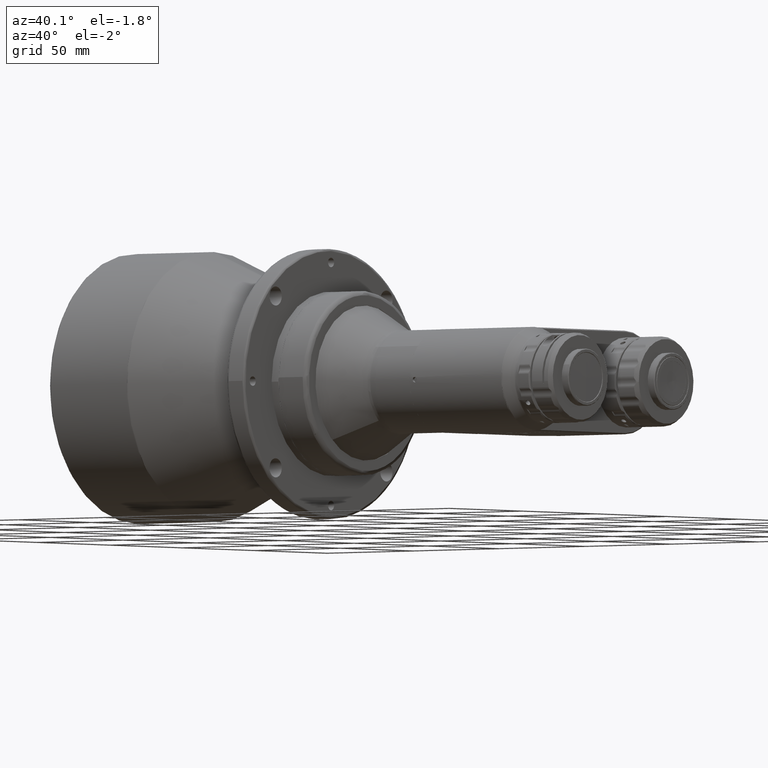
[diagram: clean part render]
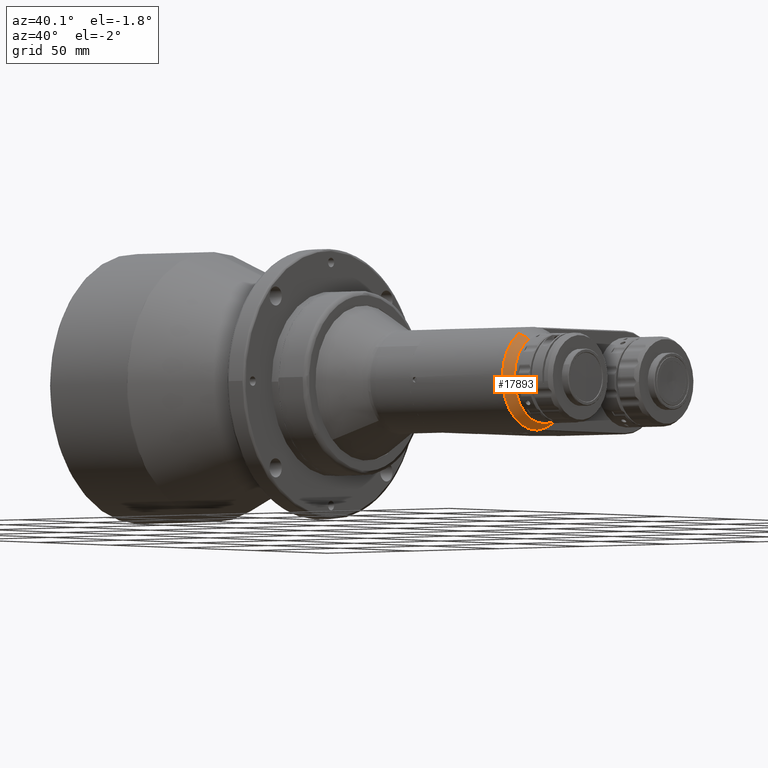
[diagram: same view with one face highlighted and labeled with its STEP entity id]
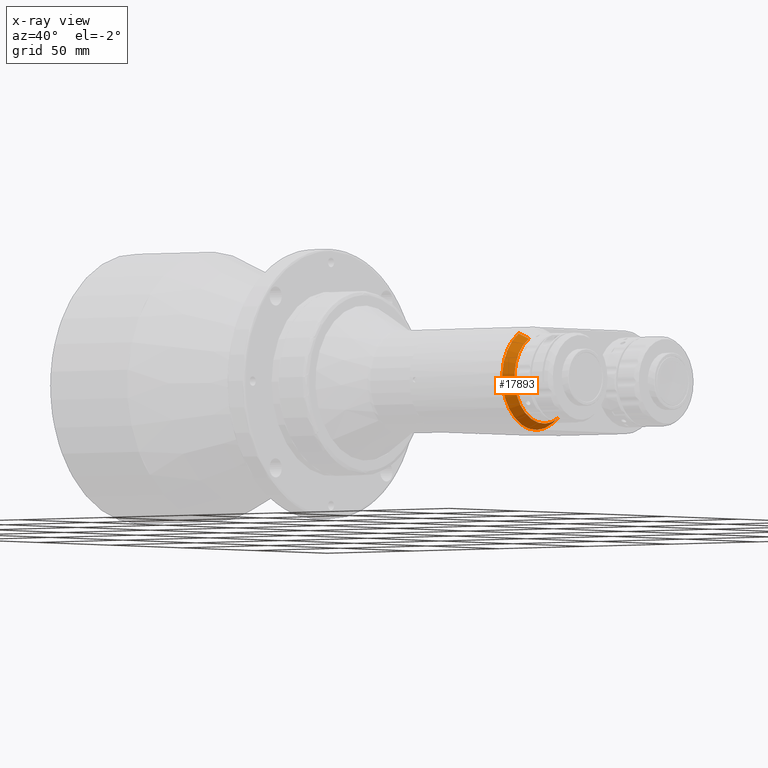
[diagram: x-ray of the same camera — body ghosted, the highlighted face saturated]
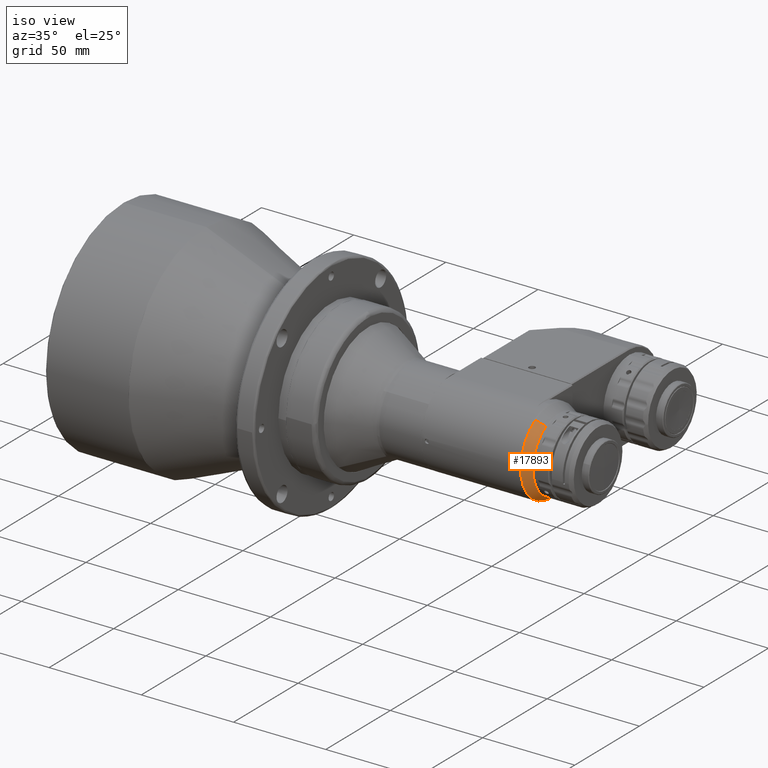
[diagram: same view with one face highlighted and labeled with its STEP entity id]
A machine part, auxiliary view. The second image highlights one B-rep face of the part: STEP entity #17893.
The next image is the same camera in x-ray: the body ghosted, the highlighted face saturated — about 0% of this face is hidden behind the body in this view.
A second angle (iso view) of the same face is appended — the face is thin or edge-on in the first view.
In plain terms, the highlighted conical surface has half-angle 30 deg.
Its self-contained STEP definition (entity closure, byte-faithful):
#659 = DIRECTION ( 'NONE',  ( -1.000000000000000000, 0.0000000000000000000, 0.0000000000000000000 ) ) ;
#723 = DIRECTION ( 'NONE',  ( 0.0000000000000000000, -0.5065023725675138500, 0.8622385670935158700 ) ) ;
#1068 = CARTESIAN_POINT ( 'NONE',  ( 236.4047245906065200, 0.0000000000000000000, 0.0000000000000000000 ) ) ;
#1220 = EDGE_LOOP ( 'NONE', ( #14109, #7163, #1576, #4075 ) ) ;
#1576 = ORIENTED_EDGE ( 'NONE', *, *, #3955, .T. ) ;
#1714 = CARTESIAN_POINT ( 'NONE',  ( 231.6726737829087300, -11.58169611916240500, 19.71596897888452600 ) ) ;
#2892 = LINE ( 'NONE', #16939, #12996 ) ;
#3204 = CIRCLE ( 'NONE', #3406, 22.86602540399999800 ) ;
#3406 = AXIS2_PLACEMENT_3D ( 'NONE', #14905, #19531, #10349 ) ;
#3806 = CARTESIAN_POINT ( 'NONE',  ( 236.4047245899520000, 0.0000000000000000000, 0.0000000000000000000 ) ) ;
#3955 = EDGE_CURVE ( 'NONE', #18192, #8743, #9079, .T. ) ;
#4075 = ORIENTED_EDGE ( 'NONE', *, *, #12612, .F. ) ;
#4082 = DIRECTION ( 'NONE',  ( 0.0000000000000000000, -0.5065023725675137400, 0.8622385670935158700 ) ) ;
#7052 = AXIS2_PLACEMENT_3D ( 'NONE', #3806, #659, #723 ) ;
#7163 = ORIENTED_EDGE ( 'NONE', *, *, #12491, .T. ) ;
#7295 = EDGE_CURVE ( 'NONE', #16621, #17185, #2892, .T. ) ;
#7512 = DIRECTION ( 'NONE',  ( -0.8660254037242456300, -0.2532511863365633500, 0.4311192836366524700 ) ) ;
#8743 = VERTEX_POINT ( 'NONE', #1714 ) ;
#9079 = LINE ( 'NONE', #16532, #15206 ) ;
#10349 = DIRECTION ( 'NONE',  ( -2.427669446284580700E-015, -0.5065023725675137400, 0.8622385670935158700 ) ) ;
#10777 = CARTESIAN_POINT ( 'NONE',  ( 236.4047245905605300, -10.19790590207233000, 17.36028940552553100 ) ) ;
#11680 = CIRCLE ( 'NONE', #14901, 20.13397459604916400 ) ;
#11731 = DIRECTION ( 'NONE',  ( -1.000000000000000000, 0.0000000000000000000, 0.0000000000000000000 ) ) ;
#11762 = CONICAL_SURFACE ( 'NONE', #7052, 20.13397459600000500, 0.5235987757186847400 ) ;
#12433 = DIRECTION ( 'NONE',  ( -0.8660254037242457500, 0.2532511863365634600, -0.4311192836366524700 ) ) ;
#12491 = EDGE_CURVE ( 'NONE', #16621, #18192, #11680, .T. ) ;
#12612 = EDGE_CURVE ( 'NONE', #17185, #8743, #3204, .T. ) ;
#12996 = VECTOR ( 'NONE', #12433, 1000.000000000000000 ) ;
#14109 = ORIENTED_EDGE ( 'NONE', *, *, #7295, .F. ) ;
#14901 = AXIS2_PLACEMENT_3D ( 'NONE', #1068, #11731, #4082 ) ;
#14905 = CARTESIAN_POINT ( 'NONE',  ( 231.6726737829520500, 0.0000000000000000000, 0.0000000000000000000 ) ) ;
#15206 = VECTOR ( 'NONE', #7512, 1000.000000000000100 ) ;
#16532 = CARTESIAN_POINT ( 'NONE',  ( 236.4047245899520000, -10.19790590208805300, 17.36028940555229400 ) ) ;
#16621 = VERTEX_POINT ( 'NONE', #17593 ) ;
#16939 = CARTESIAN_POINT ( 'NONE',  ( 236.4047245899520000, 10.19790590208805400, -17.36028940555229000 ) ) ;
#17185 = VERTEX_POINT ( 'NONE', #17915 ) ;
#17593 = CARTESIAN_POINT ( 'NONE',  ( 236.4047245904430400, 10.19790590032636000, -17.36028940662983200 ) ) ;
#17893 = ADVANCED_FACE ( 'NONE', ( #18370 ), #11762, .T. ) ;
#17915 = CARTESIAN_POINT ( 'NONE',  ( 231.6726737828005300, 11.58169611224313700, -19.71596898302152900 ) ) ;
#18192 = VERTEX_POINT ( 'NONE', #10777 ) ;
#18370 = FACE_OUTER_BOUND ( 'NONE', #1220, .T. ) ;
#19531 = DIRECTION ( 'NONE',  ( -1.000000000000000000, 0.0000000000000000000, 0.0000000000000000000 ) ) ;